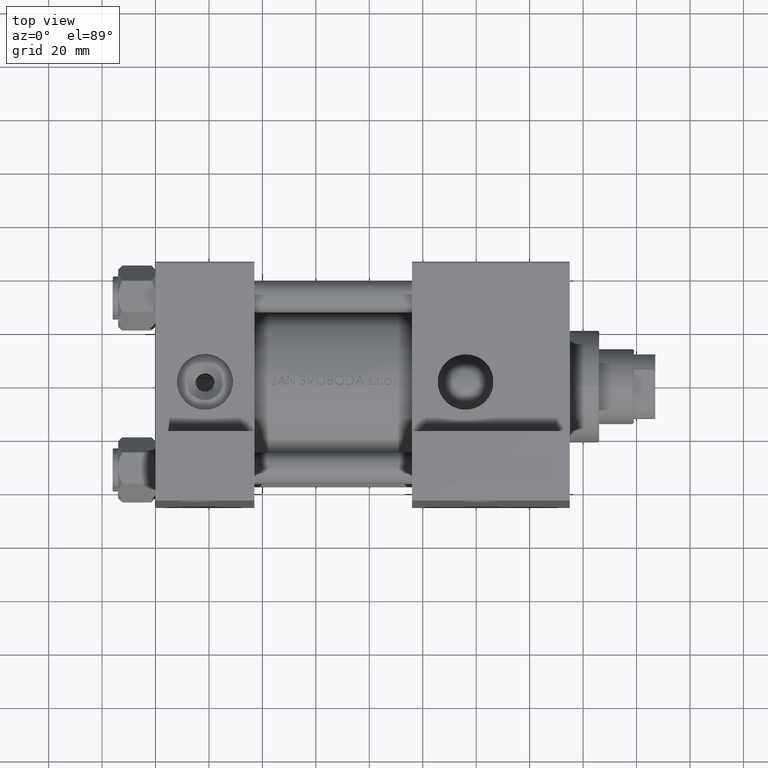
[diagram: clean part render]
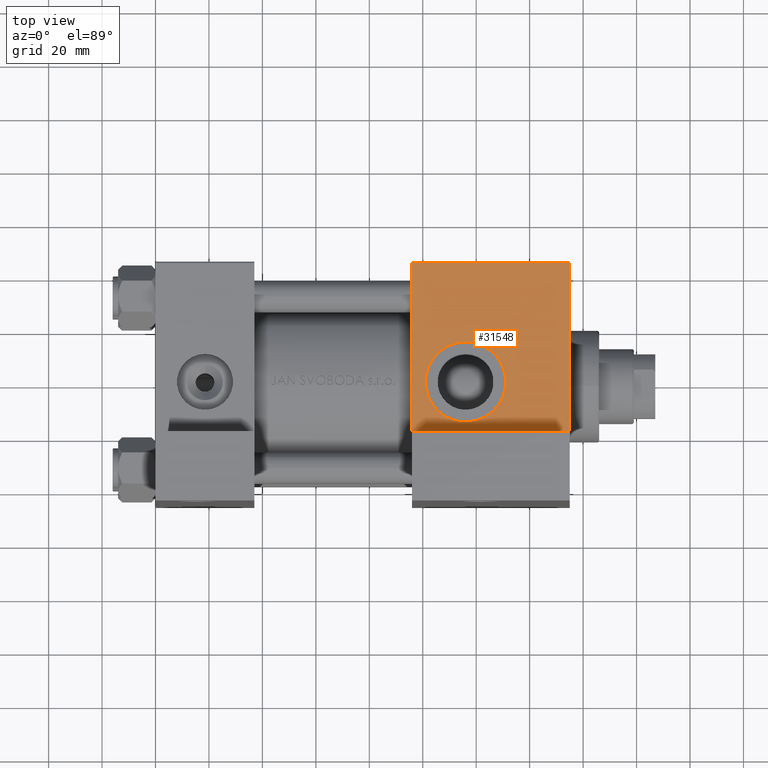
[diagram: same view with one face highlighted and labeled with its STEP entity id]
A machine part, top view. The second image highlights one B-rep face of the part: STEP entity #31548.
In plain terms, the highlighted planar face has unit normal (0, 0, -1).
Its self-contained STEP definition (entity closure, byte-faithful):
#1036 = EDGE_CURVE ( 'NONE', #21971, #7737, #15486, .T. ) ;
#1055 = CARTESIAN_POINT ( 'NONE',  ( 96.00000000000000000, -45.00000000000000000, -19.00000000000000000 ) ) ;
#1169 = ORIENTED_EDGE ( 'NONE', *, *, #38296, .F. ) ;
#1619 = LINE ( 'NONE', #41808, #47086 ) ;
#2434 = DIRECTION ( 'NONE',  ( 0.000000000000000000, 7.709882115452478166E-17, -1.000000000000000000 ) ) ;
#4727 = DIRECTION ( 'NONE',  ( 0.000000000000000000, 0.000000000000000000, -1.000000000000000000 ) ) ;
#5333 = CARTESIAN_POINT ( 'NONE',  ( 155.0000000000000000, -45.00000000000000000, 44.99999999999998579 ) ) ;
#6247 = VECTOR ( 'NONE', #25619, 1000.000000000000000 ) ;
#7737 = VERTEX_POINT ( 'NONE', #22799 ) ;
#9829 = CARTESIAN_POINT ( 'NONE',  ( 116.0000000000000000, -45.00000000000000000, -15.00000000000001421 ) ) ;
#11108 = CARTESIAN_POINT ( 'NONE',  ( 116.0000000000000000, -45.00000000000000000, 15.00000000000000888 ) ) ;
#11993 = CARTESIAN_POINT ( 'NONE',  ( 96.00000000000000000, -45.00000000000000000, 44.99999999999998579 ) ) ;
#12002 = VERTEX_POINT ( 'NONE', #44884 ) ;
#13954 = VECTOR ( 'NONE', #2434, 1000.000000000000000 ) ;
#14227 = EDGE_CURVE ( 'NONE', #35188, #24838, #31267, .T. ) ;
#15486 = LINE ( 'NONE', #1055, #6247 ) ;
#15794 = CARTESIAN_POINT ( 'NONE',  ( 116.0000000000000000, -45.00000000000000000, -3.469446951953614978E-15 ) ) ;
#17360 = VERTEX_POINT ( 'NONE', #27559 ) ;
#19380 = DIRECTION ( 'NONE',  ( -0.000000000000000000, 1.000000000000000000, 7.709882115452478166E-17 ) ) ;
#19445 = DIRECTION ( 'NONE',  ( 0.000000000000000000, 7.709882115452478166E-17, -1.000000000000000000 ) ) ;
#20099 = DIRECTION ( 'NONE',  ( 0.000000000000000000, -7.709882115452478166E-17, 1.000000000000000000 ) ) ;
#20525 = ORIENTED_EDGE ( 'NONE', *, *, #1036, .T. ) ;
#21971 = VERTEX_POINT ( 'NONE', #27498 ) ;
#22799 = CARTESIAN_POINT ( 'NONE',  ( 155.0000000000000000, -44.99999999999999289, -18.99999999999997513 ) ) ;
#24031 = VECTOR ( 'NONE', #19445, 1000.000000000000000 ) ;
#24838 = VERTEX_POINT ( 'NONE', #11108 ) ;
#25321 = EDGE_LOOP ( 'NONE', ( #38448, #42354, #40713, #20525 ) ) ;
#25619 = DIRECTION ( 'NONE',  ( 1.000000000000000000, 0.000000000000000000, 0.000000000000000000 ) ) ;
#26382 = CARTESIAN_POINT ( 'NONE',  ( 155.0000000000000000, -45.00000000000000000, 44.99999999999998579 ) ) ;
#26613 = PLANE ( 'NONE',  #40002 ) ;
#27498 = CARTESIAN_POINT ( 'NONE',  ( 96.00000000000000000, -45.00000000000000000, -19.00000000000000000 ) ) ;
#27549 = DIRECTION ( 'NONE',  ( 0.000000000000000000, -1.000000000000000000, -8.673617379884036705E-17 ) ) ;
#27559 = CARTESIAN_POINT ( 'NONE',  ( 155.0000000000000000, -45.00000000000000000, 44.49999999999998579 ) ) ;
#27809 = DIRECTION ( 'NONE',  ( 0.000000000000000000, -1.000000000000000000, -8.673617379884036705E-17 ) ) ;
#27872 = CIRCLE ( 'NONE', #42472, 15.00000000000001243 ) ;
#29295 = ORIENTED_EDGE ( 'NONE', *, *, #14227, .F. ) ;
#30678 = FACE_BOUND ( 'NONE', #31353, .T. ) ;
#31267 = CIRCLE ( 'NONE', #47324, 15.00000000000001243 ) ;
#31353 = EDGE_LOOP ( 'NONE', ( #29295, #1169 ) ) ;
#31548 = ADVANCED_FACE ( 'NONE', ( #30678, #34056 ), #26613, .F. ) ;
#34056 = FACE_OUTER_BOUND ( 'NONE', #25321, .T. ) ;
#35188 = VERTEX_POINT ( 'NONE', #9829 ) ;
#35398 = LINE ( 'NONE', #5333, #13954 ) ;
#35636 = EDGE_CURVE ( 'NONE', #17360, #7737, #35398, .T. ) ;
#37493 = DIRECTION ( 'NONE',  ( -1.000000000000000000, 0.000000000000000000, 0.000000000000000000 ) ) ;
#37921 = EDGE_CURVE ( 'NONE', #17360, #12002, #1619, .T. ) ;
#38296 = EDGE_CURVE ( 'NONE', #24838, #35188, #27872, .T. ) ;
#38448 = ORIENTED_EDGE ( 'NONE', *, *, #35636, .F. ) ;
#40002 = AXIS2_PLACEMENT_3D ( 'NONE', #26382, #19380, #20099 ) ;
#40629 = EDGE_CURVE ( 'NONE', #12002, #21971, #44734, .T. ) ;
#40713 = ORIENTED_EDGE ( 'NONE', *, *, #40629, .T. ) ;
#41808 = CARTESIAN_POINT ( 'NONE',  ( 155.0000000000000000, -45.00000000000000000, 44.49999999999998579 ) ) ;
#41993 = CARTESIAN_POINT ( 'NONE',  ( 116.0000000000000000, -45.00000000000000000, -3.469446951953614978E-15 ) ) ;
#42229 = DIRECTION ( 'NONE',  ( 0.000000000000000000, 0.000000000000000000, -1.000000000000000000 ) ) ;
#42354 = ORIENTED_EDGE ( 'NONE', *, *, #37921, .T. ) ;
#42472 = AXIS2_PLACEMENT_3D ( 'NONE', #41993, #27549, #42229 ) ;
#44734 = LINE ( 'NONE', #11993, #24031 ) ;
#44884 = CARTESIAN_POINT ( 'NONE',  ( 96.00000000000000000, -45.00000000000000000, 44.49999999999998579 ) ) ;
#47086 = VECTOR ( 'NONE', #37493, 1000.000000000000000 ) ;
#47324 = AXIS2_PLACEMENT_3D ( 'NONE', #15794, #27809, #4727 ) ;